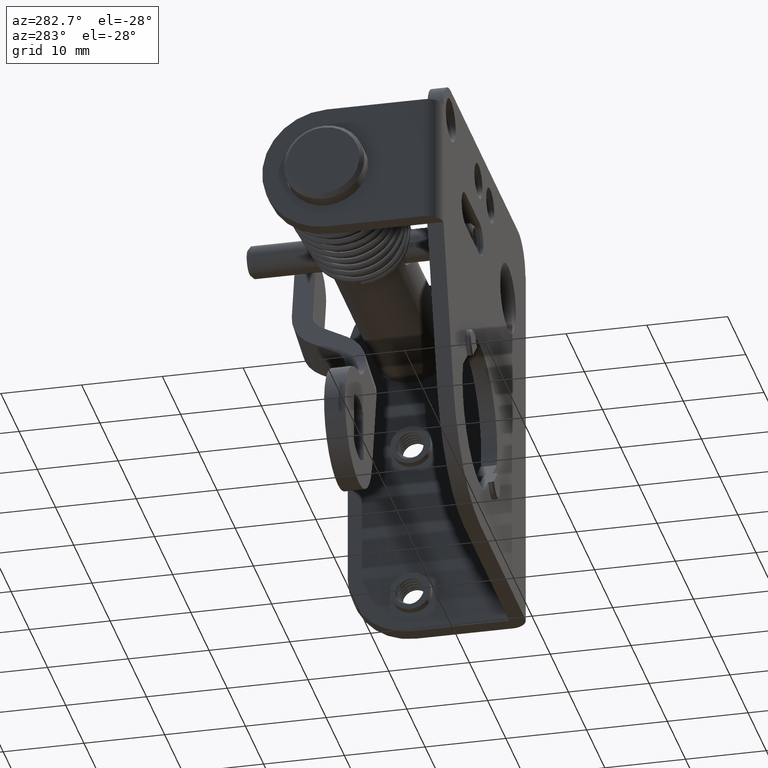
[diagram: clean part render]
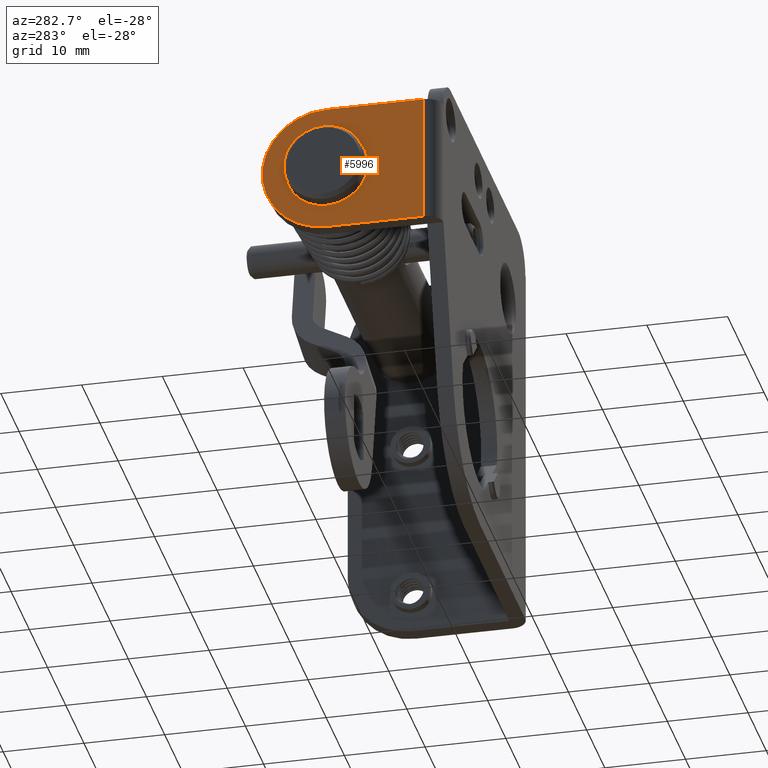
[diagram: same view with one face highlighted and labeled with its STEP entity id]
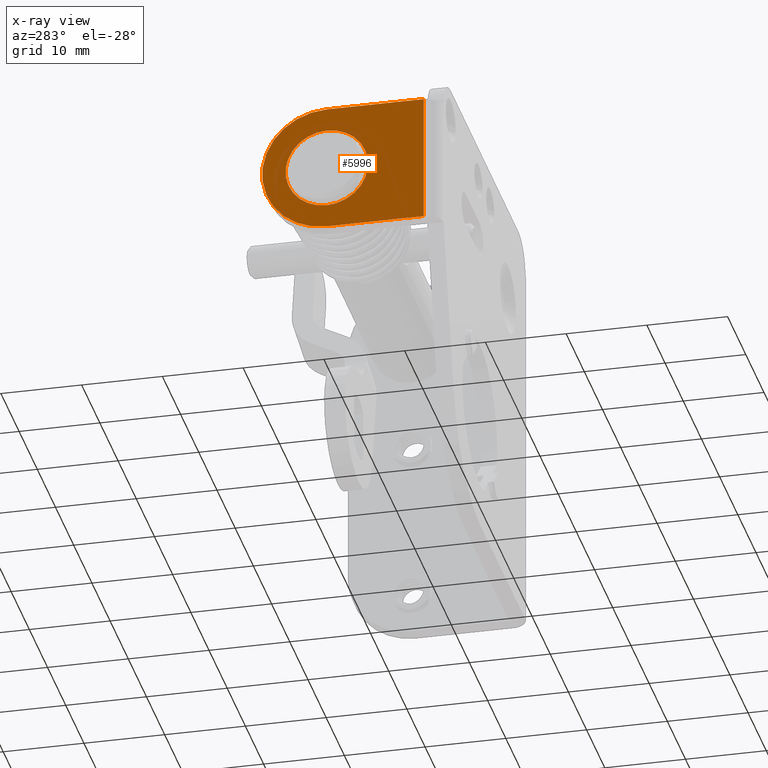
[diagram: x-ray of the same camera — body ghosted, the highlighted face saturated]
A machine part, auxiliary view. The second image highlights one B-rep face of the part: STEP entity #5996.
The next image is the same camera in x-ray: the body ghosted, the highlighted face saturated — about 0% of this face is hidden behind the body in this view.
In plain terms, the highlighted planar face has unit normal (-1, 0, -0).
Its self-contained STEP definition (entity closure, byte-faithful):
#126 = LINE ( 'NONE', #2154, #9495 ) ;
#152 = VECTOR ( 'NONE', #14941, 1000.000000000000000 ) ;
#250 = CARTESIAN_POINT ( 'NONE',  ( 2.350000000095265200, 12.00000000001368000, 1.249999999943352000 ) ) ;
#283 = DIRECTION ( 'NONE',  ( -1.474298114145788900E-012, 0.0000000000000000000, -1.000000000000000000 ) ) ;
#597 = AXIS2_PLACEMENT_3D ( 'NONE', #13173, #8298, #966 ) ;
#966 = DIRECTION ( 'NONE',  ( -1.474298114152519900E-012, 0.0000000000000000000, -1.000000000000000000 ) ) ;
#1101 = FACE_OUTER_BOUND ( 'NONE', #11703, .T. ) ;
#1818 = AXIS2_PLACEMENT_3D ( 'NONE', #10334, #2996, #11555 ) ;
#2154 = CARTESIAN_POINT ( 'NONE',  ( 2.350000000071674800, 1012.000000000014000, -14.74999999998360100 ) ) ;
#2194 = ORIENTED_EDGE ( 'NONE', *, *, #3851, .T. ) ;
#2232 = ORIENTED_EDGE ( 'NONE', *, *, #7635, .F. ) ;
#2337 = AXIS2_PLACEMENT_3D ( 'NONE', #14154, #6808, #15392 ) ;
#2384 = ORIENTED_EDGE ( 'NONE', *, *, #10598, .F. ) ;
#2426 = CIRCLE ( 'NONE', #14984, 8.000000000000000000 ) ;
#2996 = DIRECTION ( 'NONE',  ( -1.000000000000000000, 0.0000000000000000000, 1.474298114152519900E-012 ) ) ;
#3396 = DIRECTION ( 'NONE',  ( 0.0000000000000000000, -1.000000000000000000, 0.0000000000000000000 ) ) ;
#3628 = CIRCLE ( 'NONE', #2337, 5.100000000000000500 ) ;
#3752 = VERTEX_POINT ( 'NONE', #8997 ) ;
#3851 = EDGE_CURVE ( 'NONE', #12035, #12917, #9964, .T. ) ;
#4460 = ORIENTED_EDGE ( 'NONE', *, *, #4634, .T. ) ;
#4634 = EDGE_CURVE ( 'NONE', #12917, #12035, #3628, .T. ) ;
#5824 = CARTESIAN_POINT ( 'NONE',  ( 2.350000000095265200, 12.00000000001368000, 1.249999999943352000 ) ) ;
#5969 = EDGE_CURVE ( 'NONE', #5995, #12939, #14127, .T. ) ;
#5995 = VERTEX_POINT ( 'NONE', #5824 ) ;
#5996 = ADVANCED_FACE ( 'NONE', ( #7231, #1101 ), #15649, .T. ) ;
#6479 = CARTESIAN_POINT ( 'NONE',  ( 2.350000000071674800, 1.388993087214630100E-011, -14.74999999998360100 ) ) ;
#6808 = DIRECTION ( 'NONE',  ( -1.000000000000000000, 0.0000000000000000000, 1.474298114152519900E-012 ) ) ;
#7011 = CARTESIAN_POINT ( 'NONE',  ( 2.350000000095265200, 1012.000000000014000, 1.249999999943352000 ) ) ;
#7231 = FACE_BOUND ( 'NONE', #12390, .T. ) ;
#7409 = ORIENTED_EDGE ( 'NONE', *, *, #13604, .F. ) ;
#7618 = DIRECTION ( 'NONE',  ( -1.000000000000000000, 0.0000000000000000000, 1.474298114152519900E-012 ) ) ;
#7635 = EDGE_CURVE ( 'NONE', #9178, #12939, #2426, .T. ) ;
#7709 = CARTESIAN_POINT ( 'NONE',  ( 2.350000000095591200, -1.845738836817974700E-014, -11.84999999966051100 ) ) ;
#7997 = VECTOR ( 'NONE', #11883, 1000.000000000000000 ) ;
#8298 = DIRECTION ( 'NONE',  ( 1.000000000000000000, 0.0000000000000000000, -1.474298114152519900E-012 ) ) ;
#8997 = CARTESIAN_POINT ( 'NONE',  ( 2.350000000071674800, 12.00000000001368000, -14.74999999998360100 ) ) ;
#9178 = VERTEX_POINT ( 'NONE', #6479 ) ;
#9495 = VECTOR ( 'NONE', #3396, 1000.000000000000000 ) ;
#9850 = CARTESIAN_POINT ( 'NONE',  ( 2.350000000110628500, -1.908195823574490000E-014, -1.649999999660509900 ) ) ;
#9964 = CIRCLE ( 'NONE', #1818, 5.100000000000000500 ) ;
#10303 = LINE ( 'NONE', #250, #152 ) ;
#10334 = CARTESIAN_POINT ( 'NONE',  ( 2.350000000103110100, -1.908195823574490000E-014, -6.749999999660509800 ) ) ;
#10598 = EDGE_CURVE ( 'NONE', #3752, #9178, #126, .T. ) ;
#11008 = ORIENTED_EDGE ( 'NONE', *, *, #5969, .T. ) ;
#11555 = DIRECTION ( 'NONE',  ( -1.474259848186759900E-012, 0.0000000000000000000, -1.000000000000000000 ) ) ;
#11703 = EDGE_LOOP ( 'NONE', ( #2232, #2384, #7409, #11008 ) ) ;
#11704 = CARTESIAN_POINT ( 'NONE',  ( 2.350000000095265200, 1.388993087214630100E-011, 1.249999999943352000 ) ) ;
#11883 = DIRECTION ( 'NONE',  ( 0.0000000000000000000, -1.000000000000000000, 0.0000000000000000000 ) ) ;
#12035 = VERTEX_POINT ( 'NONE', #7709 ) ;
#12390 = EDGE_LOOP ( 'NONE', ( #4460, #2194 ) ) ;
#12917 = VERTEX_POINT ( 'NONE', #9850 ) ;
#12939 = VERTEX_POINT ( 'NONE', #11704 ) ;
#13173 = CARTESIAN_POINT ( 'NONE',  ( 2.350000000095265200, 1012.000000000014000, 1.249999999943352000 ) ) ;
#13604 = EDGE_CURVE ( 'NONE', #5995, #3752, #10303, .T. ) ;
#14127 = LINE ( 'NONE', #7011, #7997 ) ;
#14154 = CARTESIAN_POINT ( 'NONE',  ( 2.350000000103110100, -1.908195823574490000E-014, -6.749999999660509800 ) ) ;
#14941 = DIRECTION ( 'NONE',  ( -1.474298114152519900E-012, -0.0000000000000000000, -1.000000000000000000 ) ) ;
#14969 = CARTESIAN_POINT ( 'NONE',  ( 2.350000000083475100, 1.379278635749160100E-011, -6.749999999983599800 ) ) ;
#14984 = AXIS2_PLACEMENT_3D ( 'NONE', #14969, #7618, #283 ) ;
#15392 = DIRECTION ( 'NONE',  ( -1.474259848186759900E-012, 0.0000000000000000000, -1.000000000000000000 ) ) ;
#15649 = PLANE ( 'NONE',  #597 ) ;